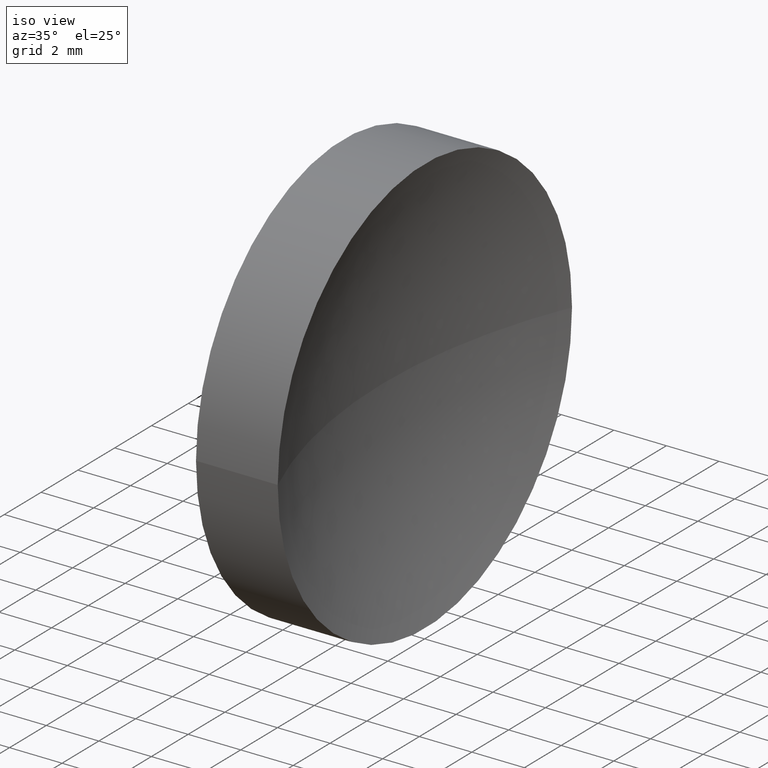
[diagram: clean part render]
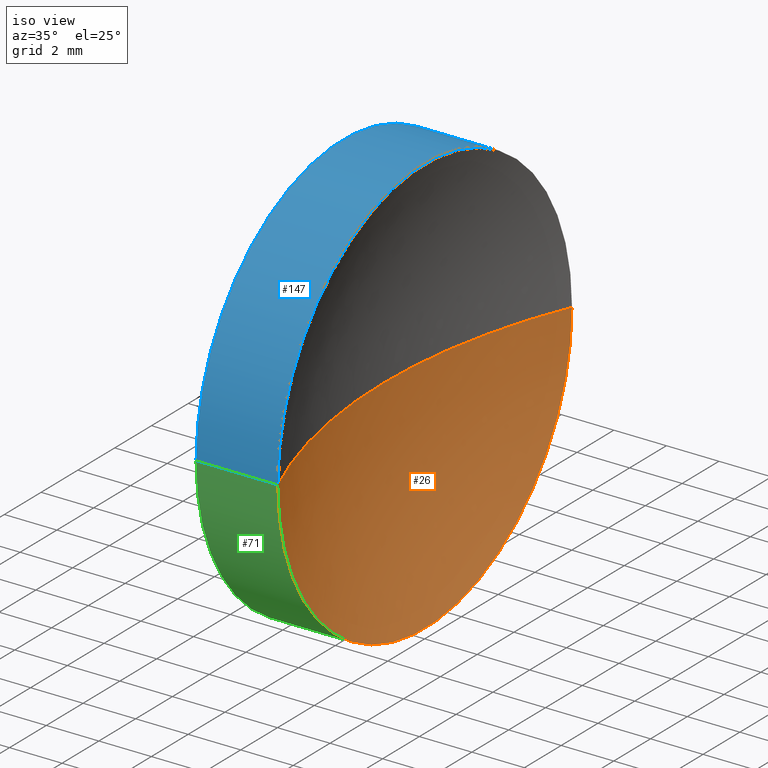
[diagram: same view with three faces highlighted in distinct colors, each labeled with its STEP entity id]
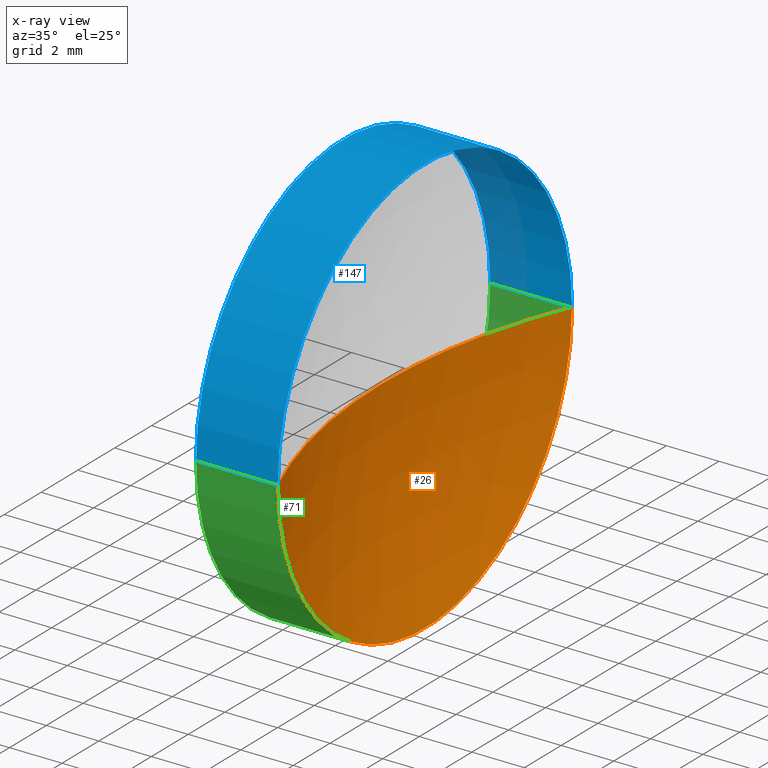
[diagram: x-ray of the same camera — body ghosted, the three highlighted faces saturated]
A machine part, iso view with three faces highlighted in distinct colors.
The next image is the same camera in x-ray (body ghosted, the three faces saturated) — at least one of them is partly hidden behind the body in this view.
Their STEP definitions:

[orange] entity #26 — the highlighted spherical surface has radius 20.65 mm.
#2 = CARTESIAN_POINT ( 'NONE',  ( 47.96702522006625500, 26.06225218280608000, 0.0000000000000000000 ) ) ;
#10 = DIRECTION ( 'NONE',  ( -6.720478357295135600E-016, -1.000000000000000000, 0.0000000000000000000 ) ) ;
#13 = EDGE_LOOP ( 'NONE', ( #137, #123, #157 ) ) ;
#22 = DIRECTION ( 'NONE',  ( 0.0000000000000000000, 0.0000000000000000000, 1.000000000000000000 ) ) ;
#26 = ADVANCED_FACE ( 'NONE', ( #79 ), #95, .F. ) ;
#30 = CIRCLE ( 'NONE', #108, 20.65000000000000200 ) ;
#31 = CARTESIAN_POINT ( 'NONE',  ( 46.35442262622448300, 26.06225218280608800, 0.0000000000000000000 ) ) ;
#40 = DIRECTION ( 'NONE',  ( -1.000000000000000000, 0.0000000000000000000, 0.0000000000000000000 ) ) ;
#55 = CARTESIAN_POINT ( 'NONE',  ( 67.00442262622448200, 26.06225218280608000, 0.0000000000000000000 ) ) ;
#56 = DIRECTION ( 'NONE',  ( 0.0000000000000000000, -1.000000000000000000, 0.0000000000000000000 ) ) ;
#62 = CIRCLE ( 'NONE', #162, 8.000000000000003600 ) ;
#63 = EDGE_CURVE ( 'NONE', #90, #164, #62, .T. ) ;
#64 = EDGE_CURVE ( 'NONE', #90, #144, #30, .T. ) ;
#66 = CARTESIAN_POINT ( 'NONE',  ( 67.00442262622448200, 26.06225218280608000, 0.0000000000000000000 ) ) ;
#68 = CARTESIAN_POINT ( 'NONE',  ( 47.96702522006625500, 34.06225218280608400, 9.797174393178819700E-016 ) ) ;
#79 = FACE_OUTER_BOUND ( 'NONE', #13, .T. ) ;
#90 = VERTEX_POINT ( 'NONE', #68 ) ;
#94 = CARTESIAN_POINT ( 'NONE',  ( 67.00442262622448200, 26.06225218280608000, 0.0000000000000000000 ) ) ;
#95 = SPHERICAL_SURFACE ( 'NONE', #141, 20.65000000000000200 ) ;
#102 = EDGE_CURVE ( 'NONE', #164, #144, #131, .T. ) ;
#108 = AXIS2_PLACEMENT_3D ( 'NONE', #55, #118, #139 ) ;
#114 = CARTESIAN_POINT ( 'NONE',  ( 47.96702522006625500, 18.06225218280608400, 0.0000000000000000000 ) ) ;
#116 = DIRECTION ( 'NONE',  ( 0.0000000000000000000, -0.0000000000000000000, -1.000000000000000000 ) ) ;
#118 = DIRECTION ( 'NONE',  ( -4.969917281268344600E-032, -1.224646799147353200E-016, 1.000000000000000000 ) ) ;
#123 = ORIENTED_EDGE ( 'NONE', *, *, #64, .T. ) ;
#130 = DIRECTION ( 'NONE',  ( -1.000000000000000000, 4.058245434298766700E-016, -0.0000000000000000000 ) ) ;
#131 = CIRCLE ( 'NONE', #148, 20.65000000000000200 ) ;
#137 = ORIENTED_EDGE ( 'NONE', *, *, #63, .F. ) ;
#139 = DIRECTION ( 'NONE',  ( 0.0000000000000000000, -1.000000000000000000, -1.224646799147353200E-016 ) ) ;
#141 = AXIS2_PLACEMENT_3D ( 'NONE', #94, #22, #10 ) ;
#144 = VERTEX_POINT ( 'NONE', #31 ) ;
#148 = AXIS2_PLACEMENT_3D ( 'NONE', #66, #116, #40 ) ;
#157 = ORIENTED_EDGE ( 'NONE', *, *, #102, .F. ) ;
#162 = AXIS2_PLACEMENT_3D ( 'NONE', #2, #130, #56 ) ;
#164 = VERTEX_POINT ( 'NONE', #114 ) ;

[blue] entity #147 — the highlighted cylindrical surface (partial cylindrical patch) has radius 8 mm, axis along (-1, 0, -0).
#1 = DIRECTION ( 'NONE',  ( -1.000000000000000000, 4.058245434298766700E-016, -0.0000000000000000000 ) ) ;
#3 = CARTESIAN_POINT ( 'NONE',  ( 43.01195023616492100, 18.06225218280608400, 0.0000000000000000000 ) ) ;
#6 = VERTEX_POINT ( 'NONE', #142 ) ;
#8 = CARTESIAN_POINT ( 'NONE',  ( 44.85442262622448300, 34.06225218280608400, 9.797174393178827600E-016 ) ) ;
#14 = AXIS2_PLACEMENT_3D ( 'NONE', #47, #57, #134 ) ;
#19 = DIRECTION ( 'NONE',  ( -1.000000000000000000, 4.058245434298766700E-016, -0.0000000000000000000 ) ) ;
#20 = VERTEX_POINT ( 'NONE', #8 ) ;
#24 = FACE_OUTER_BOUND ( 'NONE', #38, .T. ) ;
#29 = ORIENTED_EDGE ( 'NONE', *, *, #50, .T. ) ;
#34 = ORIENTED_EDGE ( 'NONE', *, *, #121, .T. ) ;
#38 = EDGE_LOOP ( 'NONE', ( #29, #34, #44, #135 ) ) ;
#43 = LINE ( 'NONE', #143, #150 ) ;
#44 = ORIENTED_EDGE ( 'NONE', *, *, #133, .F. ) ;
#47 = CARTESIAN_POINT ( 'NONE',  ( 47.96702522006625500, 26.06225218280608000, 0.0000000000000000000 ) ) ;
#49 = CIRCLE ( 'NONE', #14, 8.000000000000003600 ) ;
#50 = EDGE_CURVE ( 'NONE', #164, #90, #49, .T. ) ;
#51 = DIRECTION ( 'NONE',  ( -1.000000000000000000, 4.058245434298766700E-016, -0.0000000000000000000 ) ) ;
#54 = DIRECTION ( 'NONE',  ( -1.000000000000000000, 4.058245434298766700E-016, -0.0000000000000000000 ) ) ;
#57 = DIRECTION ( 'NONE',  ( -1.000000000000000000, 4.058245434298766700E-016, -0.0000000000000000000 ) ) ;
#67 = AXIS2_PLACEMENT_3D ( 'NONE', #81, #54, #69 ) ;
#68 = CARTESIAN_POINT ( 'NONE',  ( 47.96702522006625500, 34.06225218280608400, 9.797174393178819700E-016 ) ) ;
#69 = DIRECTION ( 'NONE',  ( 0.0000000000000000000, -1.000000000000000000, 0.0000000000000000000 ) ) ;
#81 = CARTESIAN_POINT ( 'NONE',  ( 44.85442262622448300, 26.06225218280608400, 0.0000000000000000000 ) ) ;
#88 = CIRCLE ( 'NONE', #67, 8.000000000000000000 ) ;
#89 = CARTESIAN_POINT ( 'NONE',  ( 43.01195023616492100, 26.06225218280608400, 0.0000000000000000000 ) ) ;
#90 = VERTEX_POINT ( 'NONE', #68 ) ;
#93 = DIRECTION ( 'NONE',  ( 0.0000000000000000000, -1.000000000000000000, 0.0000000000000000000 ) ) ;
#109 = VECTOR ( 'NONE', #1, 1000.000000000000000 ) ;
#114 = CARTESIAN_POINT ( 'NONE',  ( 47.96702522006625500, 18.06225218280608400, 0.0000000000000000000 ) ) ;
#121 = EDGE_CURVE ( 'NONE', #90, #20, #43, .T. ) ;
#125 = LINE ( 'NONE', #3, #109 ) ;
#126 = AXIS2_PLACEMENT_3D ( 'NONE', #89, #19, #93 ) ;
#133 = EDGE_CURVE ( 'NONE', #6, #20, #88, .T. ) ;
#134 = DIRECTION ( 'NONE',  ( 0.0000000000000000000, -1.000000000000000000, 0.0000000000000000000 ) ) ;
#135 = ORIENTED_EDGE ( 'NONE', *, *, #166, .F. ) ;
#142 = CARTESIAN_POINT ( 'NONE',  ( 44.85442262622448300, 18.06225218280608400, 0.0000000000000000000 ) ) ;
#143 = CARTESIAN_POINT ( 'NONE',  ( 43.01195023616492100, 34.06225218280608400, 9.797174393178827600E-016 ) ) ;
#147 = ADVANCED_FACE ( 'NONE', ( #24 ), #160, .T. ) ;
#150 = VECTOR ( 'NONE', #51, 1000.000000000000000 ) ;
#160 = CYLINDRICAL_SURFACE ( 'NONE', #126, 8.000000000000000000 ) ;
#164 = VERTEX_POINT ( 'NONE', #114 ) ;
#166 = EDGE_CURVE ( 'NONE', #164, #6, #125, .T. ) ;

[green] entity #71 — the highlighted cylindrical surface (partial cylindrical patch) has radius 8 mm, axis along (-1, 0, -0).
#1 = DIRECTION ( 'NONE',  ( -1.000000000000000000, 4.058245434298766700E-016, -0.0000000000000000000 ) ) ;
#2 = CARTESIAN_POINT ( 'NONE',  ( 47.96702522006625500, 26.06225218280608000, 0.0000000000000000000 ) ) ;
#3 = CARTESIAN_POINT ( 'NONE',  ( 43.01195023616492100, 18.06225218280608400, 0.0000000000000000000 ) ) ;
#5 = DIRECTION ( 'NONE',  ( 0.0000000000000000000, -1.000000000000000000, 0.0000000000000000000 ) ) ;
#6 = VERTEX_POINT ( 'NONE', #142 ) ;
#8 = CARTESIAN_POINT ( 'NONE',  ( 44.85442262622448300, 34.06225218280608400, 9.797174393178827600E-016 ) ) ;
#18 = EDGE_CURVE ( 'NONE', #20, #6, #110, .T. ) ;
#20 = VERTEX_POINT ( 'NONE', #8 ) ;
#27 = ORIENTED_EDGE ( 'NONE', *, *, #18, .F. ) ;
#43 = LINE ( 'NONE', #143, #150 ) ;
#45 = DIRECTION ( 'NONE',  ( 0.0000000000000000000, -1.000000000000000000, 0.0000000000000000000 ) ) ;
#51 = DIRECTION ( 'NONE',  ( -1.000000000000000000, 4.058245434298766700E-016, -0.0000000000000000000 ) ) ;
#56 = DIRECTION ( 'NONE',  ( 0.0000000000000000000, -1.000000000000000000, 0.0000000000000000000 ) ) ;
#58 = ORIENTED_EDGE ( 'NONE', *, *, #121, .F. ) ;
#62 = CIRCLE ( 'NONE', #162, 8.000000000000003600 ) ;
#63 = EDGE_CURVE ( 'NONE', #90, #164, #62, .T. ) ;
#68 = CARTESIAN_POINT ( 'NONE',  ( 47.96702522006625500, 34.06225218280608400, 9.797174393178819700E-016 ) ) ;
#71 = ADVANCED_FACE ( 'NONE', ( #115 ), #100, .T. ) ;
#73 = AXIS2_PLACEMENT_3D ( 'NONE', #156, #97, #5 ) ;
#76 = ORIENTED_EDGE ( 'NONE', *, *, #166, .T. ) ;
#90 = VERTEX_POINT ( 'NONE', #68 ) ;
#96 = DIRECTION ( 'NONE',  ( -1.000000000000000000, 4.058245434298766700E-016, -0.0000000000000000000 ) ) ;
#97 = DIRECTION ( 'NONE',  ( -1.000000000000000000, 4.058245434298766700E-016, -0.0000000000000000000 ) ) ;
#100 = CYLINDRICAL_SURFACE ( 'NONE', #154, 8.000000000000000000 ) ;
#104 = ORIENTED_EDGE ( 'NONE', *, *, #63, .T. ) ;
#107 = EDGE_LOOP ( 'NONE', ( #58, #104, #76, #27 ) ) ;
#109 = VECTOR ( 'NONE', #1, 1000.000000000000000 ) ;
#110 = CIRCLE ( 'NONE', #73, 8.000000000000000000 ) ;
#114 = CARTESIAN_POINT ( 'NONE',  ( 47.96702522006625500, 18.06225218280608400, 0.0000000000000000000 ) ) ;
#115 = FACE_OUTER_BOUND ( 'NONE', #107, .T. ) ;
#121 = EDGE_CURVE ( 'NONE', #90, #20, #43, .T. ) ;
#125 = LINE ( 'NONE', #3, #109 ) ;
#129 = CARTESIAN_POINT ( 'NONE',  ( 43.01195023616492100, 26.06225218280608400, 0.0000000000000000000 ) ) ;
#130 = DIRECTION ( 'NONE',  ( -1.000000000000000000, 4.058245434298766700E-016, -0.0000000000000000000 ) ) ;
#142 = CARTESIAN_POINT ( 'NONE',  ( 44.85442262622448300, 18.06225218280608400, 0.0000000000000000000 ) ) ;
#143 = CARTESIAN_POINT ( 'NONE',  ( 43.01195023616492100, 34.06225218280608400, 9.797174393178827600E-016 ) ) ;
#150 = VECTOR ( 'NONE', #51, 1000.000000000000000 ) ;
#154 = AXIS2_PLACEMENT_3D ( 'NONE', #129, #96, #45 ) ;
#156 = CARTESIAN_POINT ( 'NONE',  ( 44.85442262622448300, 26.06225218280608400, 0.0000000000000000000 ) ) ;
#162 = AXIS2_PLACEMENT_3D ( 'NONE', #2, #130, #56 ) ;
#164 = VERTEX_POINT ( 'NONE', #114 ) ;
#166 = EDGE_CURVE ( 'NONE', #164, #6, #125, .T. ) ;